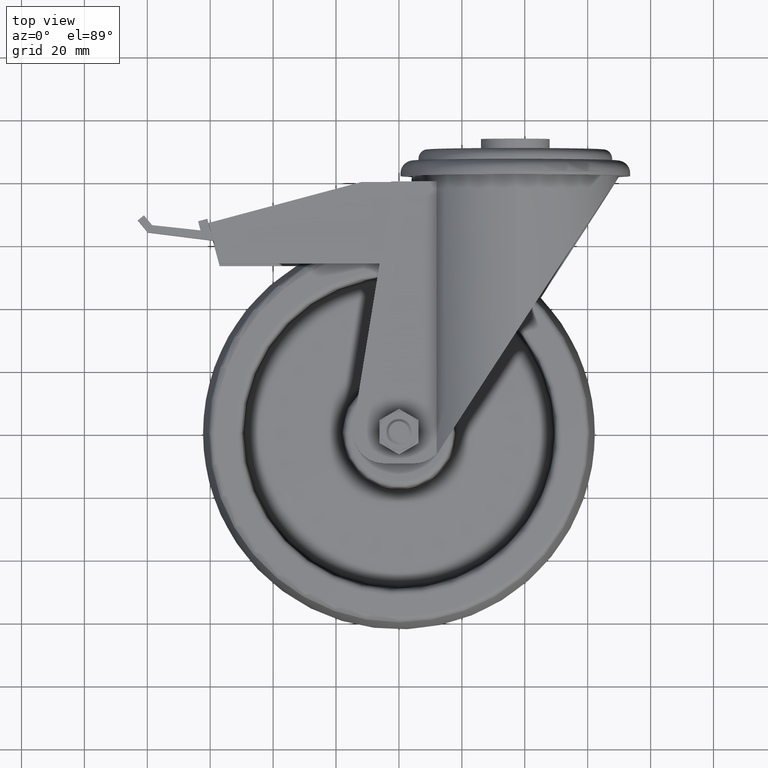
[diagram: clean part render]
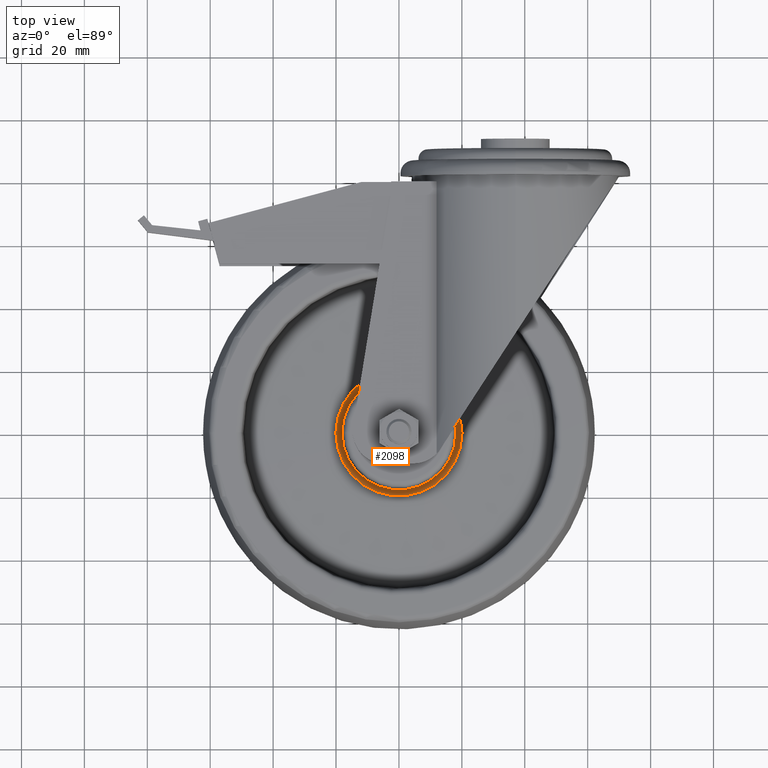
[diagram: same view with one face highlighted and labeled with its STEP entity id]
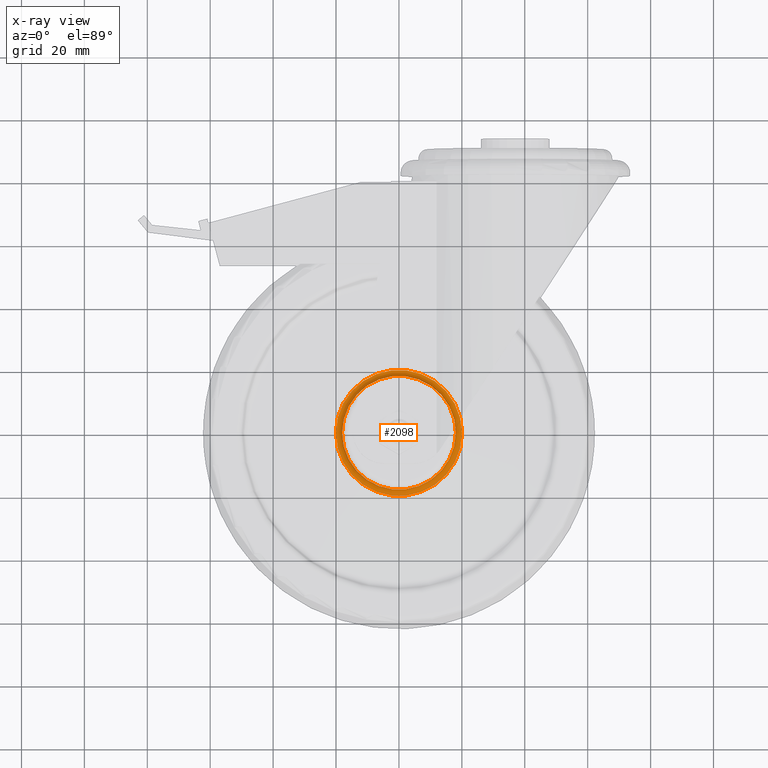
[diagram: x-ray of the same camera — body ghosted, the highlighted face saturated]
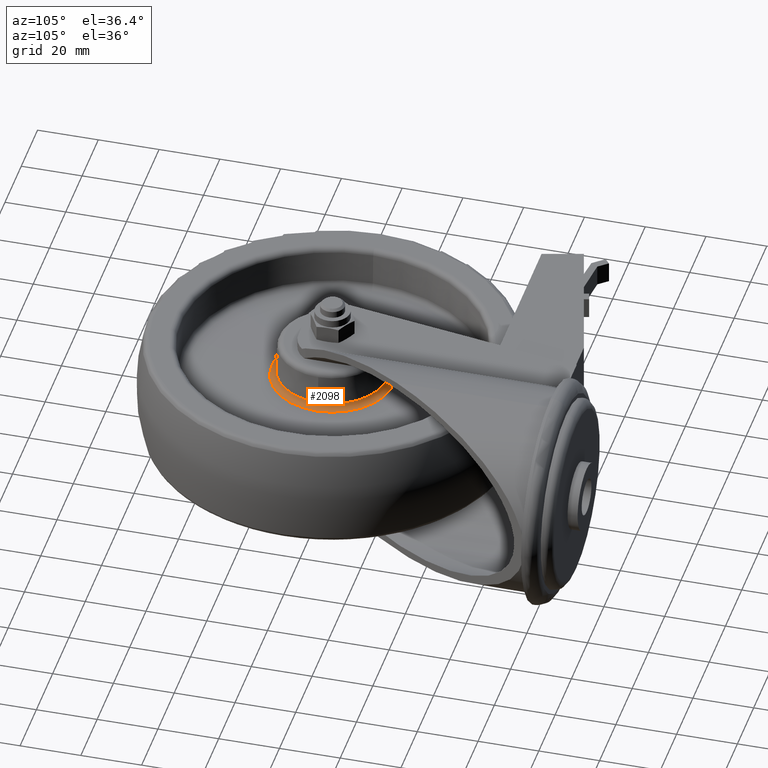
[diagram: same view with one face highlighted and labeled with its STEP entity id]
A machine part, top view. The second image highlights one B-rep face of the part: STEP entity #2098.
The next image is the same camera in x-ray: the body ghosted, the highlighted face saturated — about 0% of this face is hidden behind the body in this view.
A second angle (auxiliary view) of the same face is appended — the face is thin or edge-on in the first view.
In plain terms, the highlighted toroidal blend (fillet) surface has major radius 20.1029 mm and minor (blend) radius 2 mm.
Its self-contained STEP definition (entity closure, byte-faithful):
#140=TOROIDAL_SURFACE('',#2430,20.1028550662726,1.99999999999999);
#350=FACE_OUTER_BOUND('',#497,.T.);
#497=EDGE_LOOP('',(#1893,#1894,#1895,#1896,#1897,#1898));
#590=CIRCLE('',#2428,18.1055959967634);
#591=CIRCLE('',#2429,18.1055959967634);
#592=CIRCLE('',#2431,1.99999999999999);
#593=CIRCLE('',#2432,20.0330560728676);
#594=CIRCLE('',#2433,20.0330560728676);
#1056=VERTEX_POINT('',#3762);
#1057=VERTEX_POINT('',#3763);
#1058=VERTEX_POINT('',#3768);
#1059=VERTEX_POINT('',#3770);
#1336=EDGE_CURVE('',#1056,#1057,#590,.T.);
#1337=EDGE_CURVE('',#1057,#1056,#591,.T.);
#1339=EDGE_CURVE('',#1057,#1058,#592,.T.);
#1340=EDGE_CURVE('',#1058,#1059,#593,.T.);
#1341=EDGE_CURVE('',#1059,#1058,#594,.T.);
#1893=ORIENTED_EDGE('',*,*,#1336,.F.);
#1894=ORIENTED_EDGE('',*,*,#1337,.F.);
#1895=ORIENTED_EDGE('',*,*,#1339,.T.);
#1896=ORIENTED_EDGE('',*,*,#1340,.T.);
#1897=ORIENTED_EDGE('',*,*,#1341,.T.);
#1898=ORIENTED_EDGE('',*,*,#1339,.F.);
#2098=ADVANCED_FACE('',(#350),#140,.F.);
#2428=AXIS2_PLACEMENT_3D('',#3764,#2997,#2998);
#2429=AXIS2_PLACEMENT_3D('',#3765,#2999,#3000);
#2430=AXIS2_PLACEMENT_3D('',#3767,#3002,#3003);
#2431=AXIS2_PLACEMENT_3D('',#3769,#3004,#3005);
#2432=AXIS2_PLACEMENT_3D('',#3771,#3006,#3007);
#2433=AXIS2_PLACEMENT_3D('',#3772,#3008,#3009);
#2997=DIRECTION('center_axis',(0.,0.,1.));
#2998=DIRECTION('ref_axis',(1.,0.,0.));
#2999=DIRECTION('center_axis',(0.,0.,1.));
#3000=DIRECTION('ref_axis',(1.,0.,0.));
#3002=DIRECTION('center_axis',(0.,0.,1.));
#3003=DIRECTION('ref_axis',(1.,0.,0.));
#3004=DIRECTION('center_axis',(-1.22464679914735E-16,1.,0.));
#3005=DIRECTION('ref_axis',(-1.,-1.22464679914735E-16,0.));
#3006=DIRECTION('center_axis',(0.,0.,1.));
#3007=DIRECTION('ref_axis',(1.,0.,0.));
#3008=DIRECTION('center_axis',(0.,0.,1.));
#3009=DIRECTION('ref_axis',(1.,0.,0.));
#3762=CARTESIAN_POINT('',(18.1055959967634,0.,5.94454000821644));
#3763=CARTESIAN_POINT('',(-18.1055959967634,-2.21729601840914E-15,5.94454000821644));
#3764=CARTESIAN_POINT('Origin',(0.,0.,5.94454000821644));
#3765=CARTESIAN_POINT('Origin',(0.,0.,5.94454000821644));
#3767=CARTESIAN_POINT('Origin',(0.,0.,6.04921192070232));
#3768=CARTESIAN_POINT('',(-20.0330560728676,-2.45334179967768E-15,4.05043026666414));
#3769=CARTESIAN_POINT('Origin',(-20.1028550662726,-2.46188971106339E-15,
6.04921192070232));
#3770=CARTESIAN_POINT('',(20.0330560728676,0.,4.05043026666414));
#3771=CARTESIAN_POINT('Origin',(0.,0.,4.05043026666414));
#3772=CARTESIAN_POINT('Origin',(0.,0.,4.05043026666414));